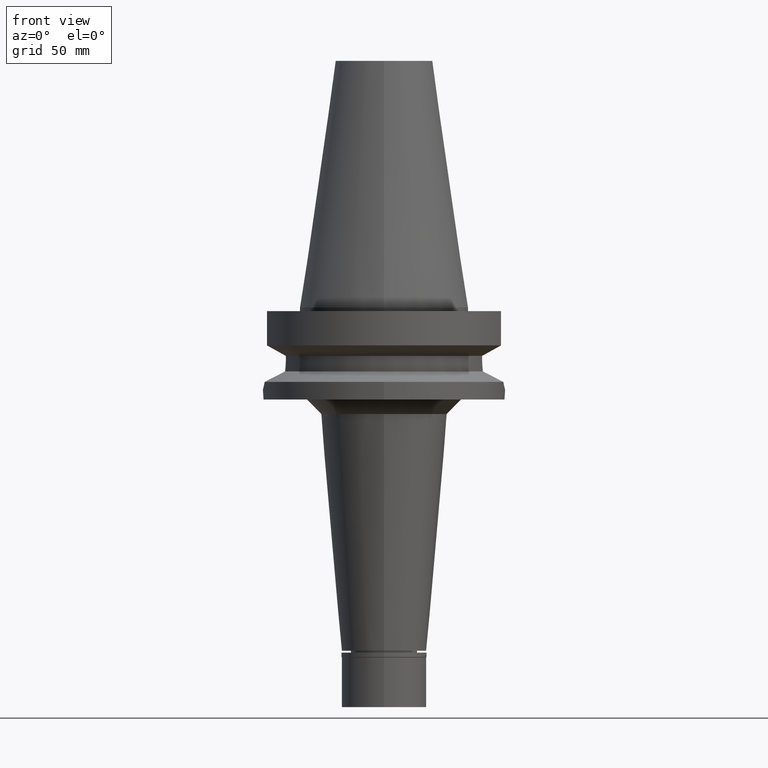
[diagram: clean part render]
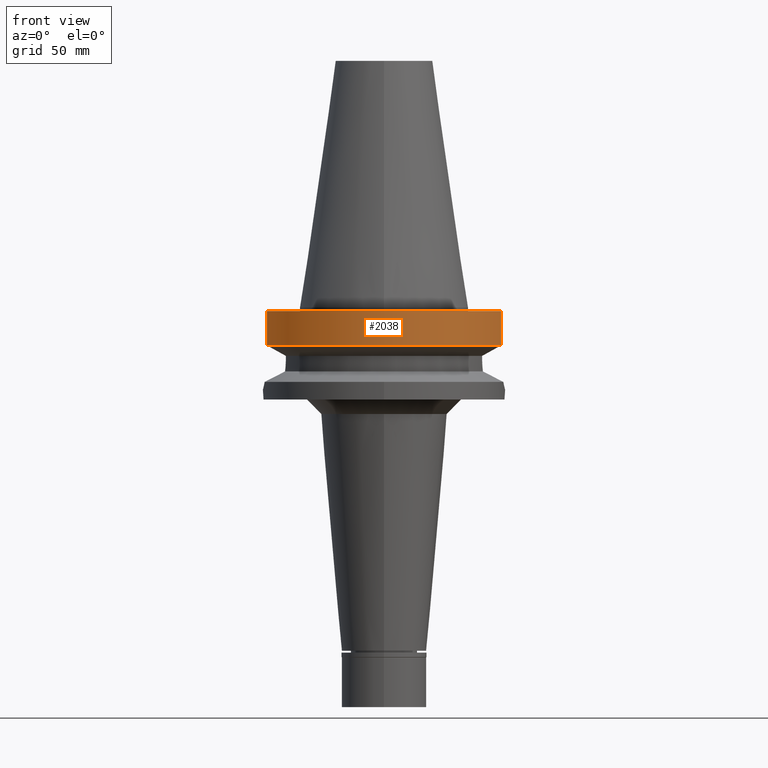
[diagram: same view with one face highlighted and labeled with its STEP entity id]
A machine part, front view. The second image highlights one B-rep face of the part: STEP entity #2038.
In plain terms, the highlighted cylindrical surface (partial cylindrical patch) has radius 50 mm, axis along (0, 0, -1).
Its self-contained STEP definition (entity closure, byte-faithful):
#9 = DIRECTION ( 'NONE',  ( 0.0000000000000000000, -1.000000000000000000, 0.0000000000000000000 ) ) ;
#162 = AXIS2_PLACEMENT_3D ( 'NONE', #2670, #2191, #683 ) ;
#247 = DIRECTION ( 'NONE',  ( 0.0000000000000000000, 0.0000000000000000000, -1.000000000000000000 ) ) ;
#252 = VECTOR ( 'NONE', #1432, 999.9999999999998863 ) ;
#266 = DIRECTION ( 'NONE',  ( -7.242826062940713647E-08, 2.723558434545890236E-07, 0.9999999999999603650 ) ) ;
#683 = DIRECTION ( 'NONE',  ( 0.0000000000000000000, -1.000000000000000000, 0.0000000000000000000 ) ) ;
#691 = EDGE_CURVE ( 'NONE', #2900, #1275, #1243, .T. ) ;
#943 = CARTESIAN_POINT ( 'NONE',  ( -48.32057015392000210, -12.84999999999999964, -1.500000000000000000 ) ) ;
#966 = DIRECTION ( 'NONE',  ( 0.0000000000000000000, -1.000000000000000000, 0.0000000000000000000 ) ) ;
#1022 = CYLINDRICAL_SURFACE ( 'NONE', #1914, 50.00000000000000000 ) ;
#1068 = EDGE_CURVE ( 'NONE', #2196, #2356, #2639, .T. ) ;
#1207 = CARTESIAN_POINT ( 'NONE',  ( -48.32056912814000071, -12.85000385727999905, -15.66265768250999990 ) ) ;
#1243 = CIRCLE ( 'NONE', #1405, 50.00000000000000000 ) ;
#1275 = VERTEX_POINT ( 'NONE', #943 ) ;
#1405 = AXIS2_PLACEMENT_3D ( 'NONE', #1680, #1927, #9 ) ;
#1432 = DIRECTION ( 'NONE',  ( -7.245235590871711235E-08, -2.724464493457891478E-07, -0.9999999999999603650 ) ) ;
#1642 = ORIENTED_EDGE ( 'NONE', *, *, #2781, .F. ) ;
#1680 = CARTESIAN_POINT ( 'NONE',  ( 0.0000000000000000000, 2.630602556908000006E-14, -1.500000000000000000 ) ) ;
#1699 = VECTOR ( 'NONE', #266, 1000.000000000000114 ) ;
#1703 = FACE_OUTER_BOUND ( 'NONE', #2874, .T. ) ;
#1738 = ORIENTED_EDGE ( 'NONE', *, *, #1983, .F. ) ;
#1779 = CARTESIAN_POINT ( 'NONE',  ( 48.32057015392000210, -12.84999999999999964, -1.500000000000000000 ) ) ;
#1895 = ORIENTED_EDGE ( 'NONE', *, *, #691, .T. ) ;
#1914 = AXIS2_PLACEMENT_3D ( 'NONE', #2731, #247, #966 ) ;
#1927 = DIRECTION ( 'NONE',  ( 0.0000000000000000000, 0.0000000000000000000, -1.000000000000000000 ) ) ;
#1983 = EDGE_CURVE ( 'NONE', #2196, #1275, #2440, .T. ) ;
#2038 = ADVANCED_FACE ( 'NONE', ( #1703 ), #1022, .T. ) ;
#2191 = DIRECTION ( 'NONE',  ( 0.0000000000000000000, 0.0000000000000000000, 1.000000000000000000 ) ) ;
#2196 = VERTEX_POINT ( 'NONE', #2534 ) ;
#2301 = ORIENTED_EDGE ( 'NONE', *, *, #1068, .T. ) ;
#2334 = CARTESIAN_POINT ( 'NONE',  ( 48.32057015392000210, -12.84999999999999964, -15.66269223573000069 ) ) ;
#2356 = VERTEX_POINT ( 'NONE', #2334 ) ;
#2440 = LINE ( 'NONE', #1207, #1699 ) ;
#2534 = CARTESIAN_POINT ( 'NONE',  ( -48.32056912814000071, -12.85000385727999905, -15.66265768250999990 ) ) ;
#2639 = CIRCLE ( 'NONE', #162, 50.00000000000000000 ) ;
#2663 = LINE ( 'NONE', #3175, #252 ) ;
#2670 = CARTESIAN_POINT ( 'NONE',  ( 0.0000000000000000000, 1.006319759053999930E-14, -15.66269223573000069 ) ) ;
#2731 = CARTESIAN_POINT ( 'NONE',  ( 0.0000000000000000000, 2.630602556908000006E-14, 114.8050000000000068 ) ) ;
#2781 = EDGE_CURVE ( 'NONE', #2900, #2356, #2663, .T. ) ;
#2874 = EDGE_LOOP ( 'NONE', ( #1738, #2301, #1642, #1895 ) ) ;
#2900 = VERTEX_POINT ( 'NONE', #1779 ) ;
#3175 = CARTESIAN_POINT ( 'NONE',  ( 48.32057015392000210, -12.84999999999999964, -1.500000000000000000 ) ) ;